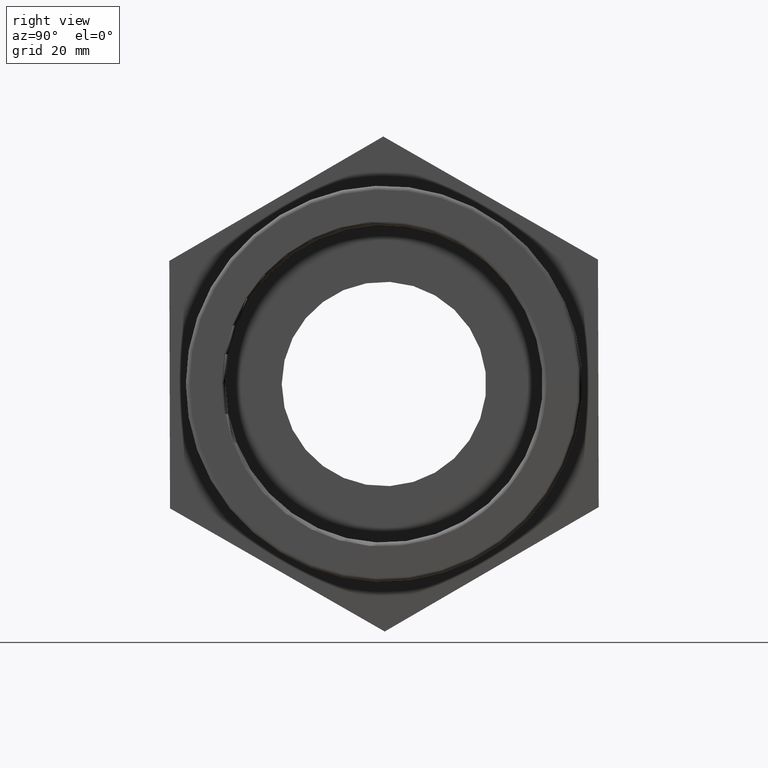
[diagram: clean part render]
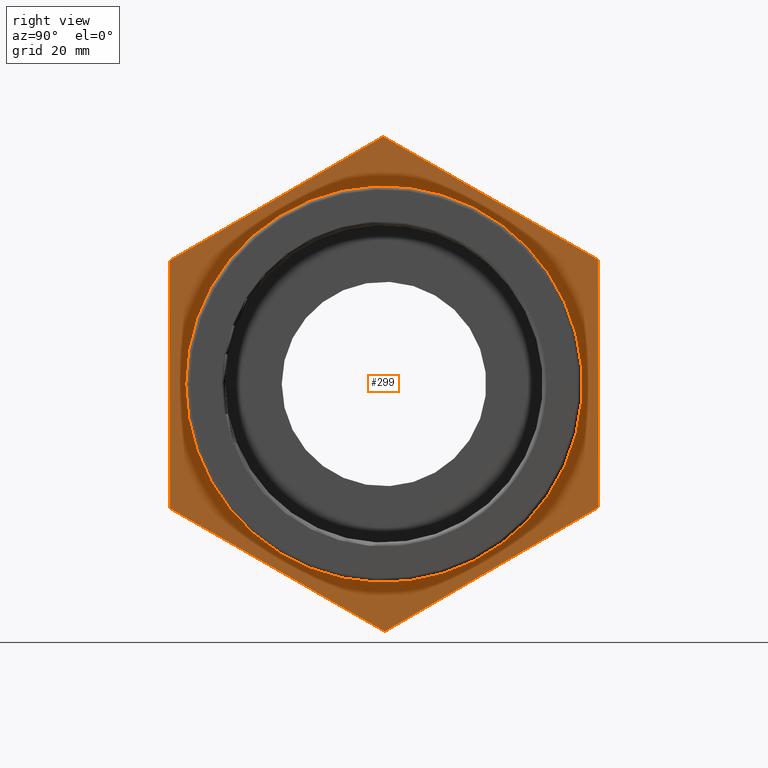
[diagram: same view with one face highlighted and labeled with its STEP entity id]
A machine part, right view. The second image highlights one B-rep face of the part: STEP entity #299.
In plain terms, the highlighted planar face has unit normal (1, 0, 0).
Its self-contained STEP definition (entity closure, byte-faithful):
#17=LINE('',#470,#35);
#21=LINE('',#477,#39);
#24=LINE('',#483,#42);
#27=LINE('',#491,#45);
#30=LINE('',#495,#48);
#32=LINE('',#498,#50);
#35=VECTOR('',#388,54.8482755730144);
#39=VECTOR('',#394,54.8482755730144);
#42=VECTOR('',#399,54.8482755730144);
#45=VECTOR('',#404,54.8482755730145);
#48=VECTOR('',#409,54.8482755730144);
#50=VECTOR('',#413,54.8482755730145);
#66=PLANE('',#336);
#81=FACE_BOUND('',#137,.T.);
#102=FACE_OUTER_BOUND('',#136,.T.);
#136=EDGE_LOOP('',(#262,#263,#264,#265,#266,#267));
#137=EDGE_LOOP('',(#268));
#145=CIRCLE('',#313,43.942);
#159=VERTEX_POINT('',#444);
#168=VERTEX_POINT('',#467);
#169=VERTEX_POINT('',#469);
#171=VERTEX_POINT('',#475);
#173=VERTEX_POINT('',#481);
#176=VERTEX_POINT('',#488);
#177=VERTEX_POINT('',#490);
#185=EDGE_CURVE('',#159,#159,#145,.T.);
#194=EDGE_CURVE('',#168,#169,#17,.T.);
#198=EDGE_CURVE('',#171,#168,#21,.T.);
#201=EDGE_CURVE('',#173,#171,#24,.T.);
#204=EDGE_CURVE('',#176,#177,#27,.T.);
#207=EDGE_CURVE('',#169,#176,#30,.T.);
#209=EDGE_CURVE('',#177,#173,#32,.T.);
#262=ORIENTED_EDGE('',*,*,#207,.F.);
#263=ORIENTED_EDGE('',*,*,#194,.F.);
#264=ORIENTED_EDGE('',*,*,#198,.F.);
#265=ORIENTED_EDGE('',*,*,#201,.F.);
#266=ORIENTED_EDGE('',*,*,#209,.F.);
#267=ORIENTED_EDGE('',*,*,#204,.F.);
#268=ORIENTED_EDGE('',*,*,#185,.T.);
#299=ADVANCED_FACE('',(#102,#81),#66,.T.);
#313=AXIS2_PLACEMENT_3D('',#445,#360,#361);
#336=AXIS2_PLACEMENT_3D('',#506,#424,#425);
#360=DIRECTION('center_axis',(-1.,-1.83697019872103E-16,0.));
#361=DIRECTION('ref_axis',(0.,0.,1.));
#388=DIRECTION('',(5.44336326564165E-19,-0.0029632289459195,0.999995609627469));
#394=DIRECTION('',(1.59357755523959E-16,-0.867503216083254,0.49743157326934));
#399=DIRECTION('',(1.58813419197395E-16,-0.864539987137336,-0.502564036358129));
#404=DIRECTION('',(-1.59357755523959E-16,0.867503216083255,-0.497431573269339));
#409=DIRECTION('',(-1.58813419197395E-16,0.864539987137335,0.50256403635813));
#413=DIRECTION('',(-5.44336326563926E-19,0.0029632289459182,-0.999995609627469));
#424=DIRECTION('center_axis',(1.,1.83697019872103E-16,0.));
#425=DIRECTION('ref_axis',(0.,0.,-1.));
#444=CARTESIAN_POINT('',(2.00000000000001,-43.942,0.));
#445=CARTESIAN_POINT('Origin',(2.00000000000001,6.98048675513992E-15,0.));
#467=CARTESIAN_POINT('',(2.00000000000002,-47.4185274583989,-27.5647707592571));
#469=CARTESIAN_POINT('',(2.00000000000002,-47.5810554562106,27.2832640093948));
#470=CARTESIAN_POINT('',(2.00000000000002,-47.4185274583989,-27.5647707592571));
#475=CARTESIAN_POINT('',(2.00000000000001,0.162527997811618,-54.848034768652));
#477=CARTESIAN_POINT('',(2.00000000000001,0.162527997811618,-54.848034768652));
#481=CARTESIAN_POINT('',(2.,47.5810554562106,-27.2832640093949));
#483=CARTESIAN_POINT('',(2.,47.5810554562106,-27.2832640093949));
#488=CARTESIAN_POINT('',(2.00000000000001,-0.162527997811719,54.848034768652));
#490=CARTESIAN_POINT('',(2.,47.4185274583989,27.5647707592572));
#491=CARTESIAN_POINT('',(2.00000000000001,-0.162527997811719,54.848034768652));
#495=CARTESIAN_POINT('',(2.00000000000002,-47.5810554562106,27.2832640093948));
#498=CARTESIAN_POINT('',(2.,47.4185274583989,27.5647707592572));
#506=CARTESIAN_POINT('Origin',(2.00000000000002,-47.5,0.));